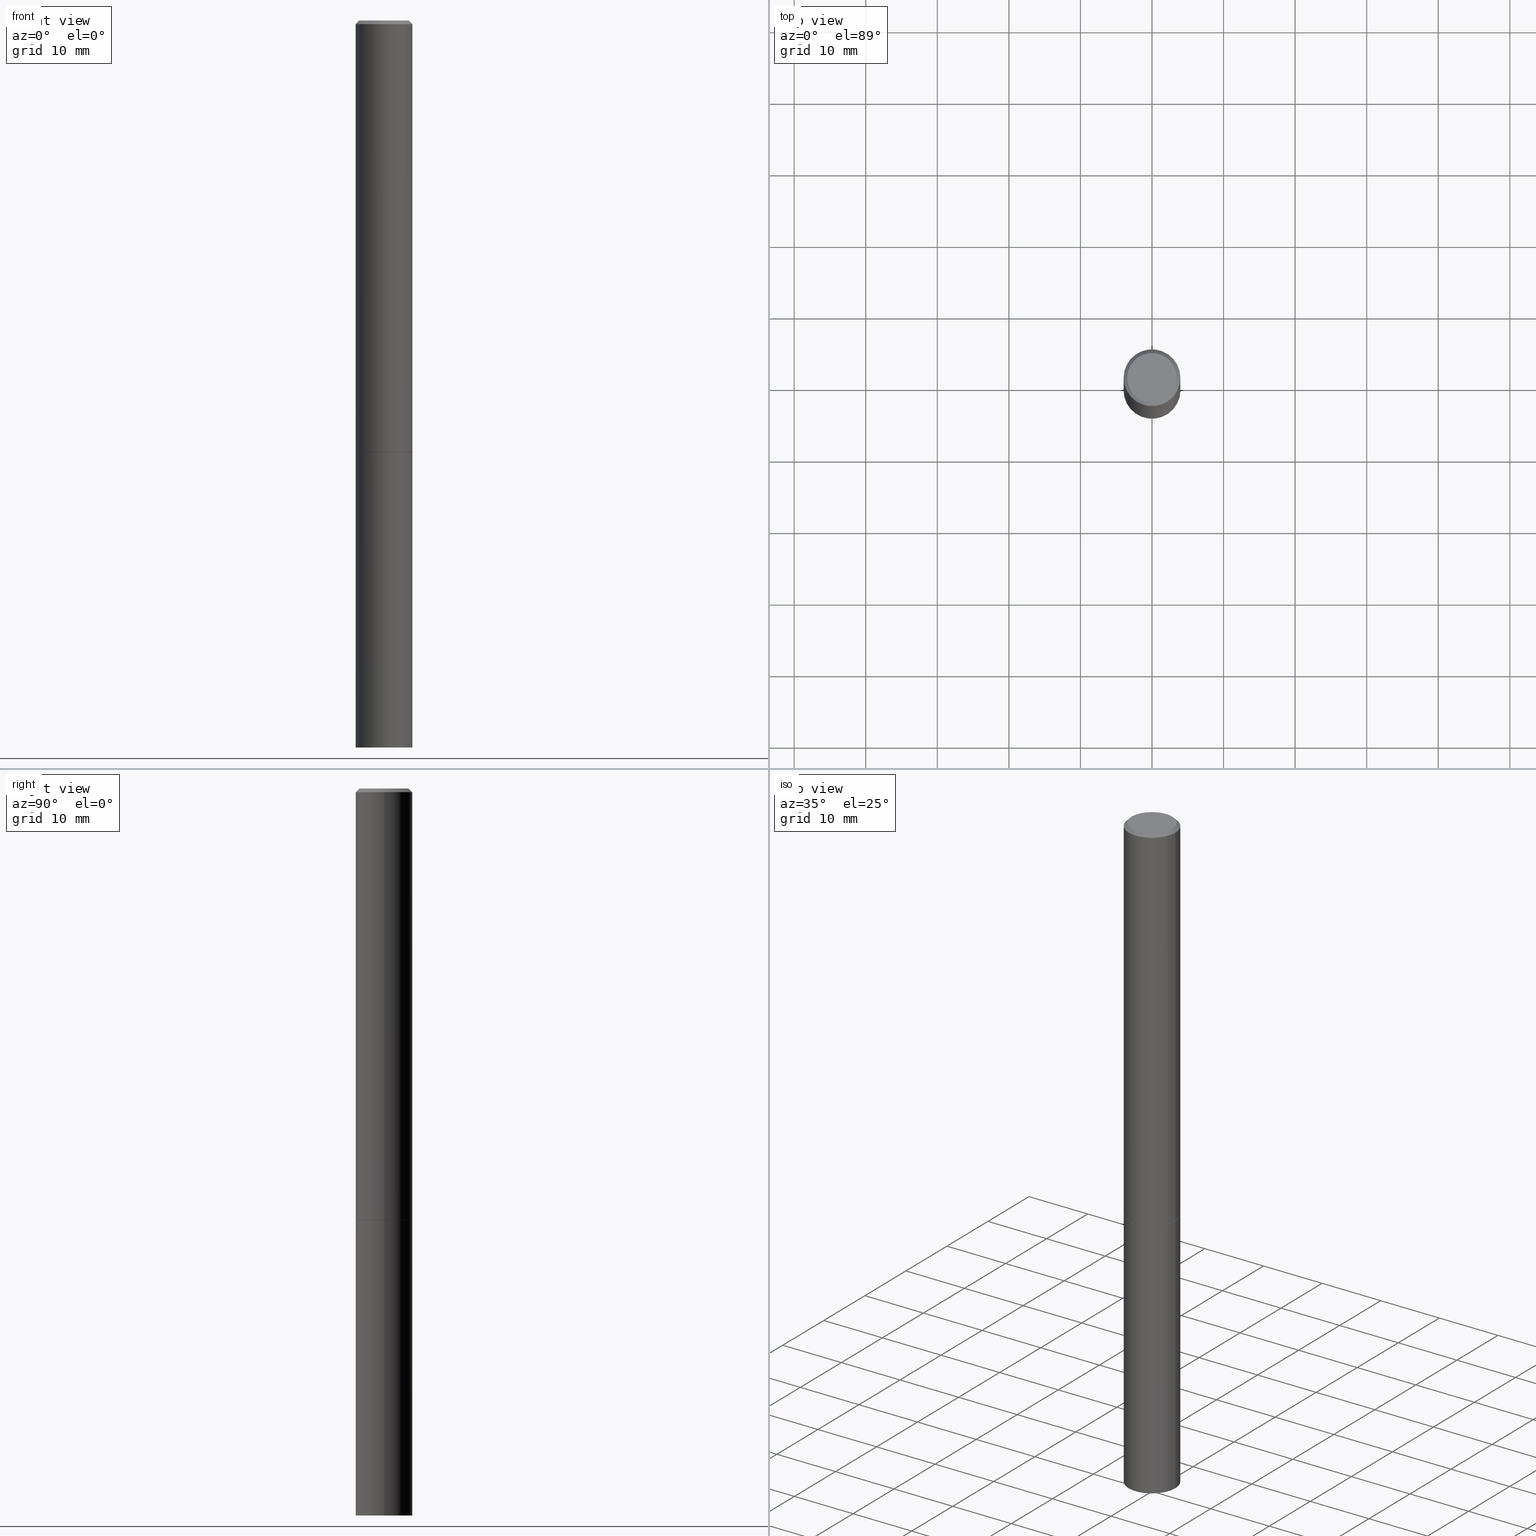
[diagram: canonical four-view strip — front | top / right | iso, engineering-drawing reading convention]
A machine part, canonical four-view strip (front | top / right | iso — engineering-drawing reading convention). The complete STEP part file that produces these views, byte-faithful:
ISO-10303-21;
HEADER;
FILE_DESCRIPTION (( 'STEP AP203' ),
    '1' );
FILE_NAME ('31961.STEP',
    '2024-02-27T14:27:03',
    ( '' ),
    ( '' ),
    'SwSTEP 2.0',
    'SolidWorks 2023',
    '' );
FILE_SCHEMA (( 'CONFIG_CONTROL_DESIGN' ));
ENDSEC;

DATA;
#1 = CARTESIAN_POINT ( 'NONE',  ( -0.1562499999999997224, 1.021258291611614298E-15, -0.02000000000000003511 ) ) ;
#2 = ORIENTED_EDGE ( 'NONE', *, *, #322, .T. ) ;
#3 = DATE_AND_TIME ( #362, #293 ) ;
#4 = CARTESIAN_POINT ( 'NONE',  ( -0.1562499999999998612, 1.110223024625155554E-15, -7.685836078523284153E-30 ) ) ;
#5 = CARTESIAN_POINT ( 'NONE',  ( 0.000000000000000000, 0.000000000000000000, 0.000000000000000000 ) ) ;
#6 = DIRECTION ( 'NONE',  ( 1.000000000000000000, -6.982962677686268288E-15, 0.000000000000000000 ) ) ;
#7 = CC_DESIGN_PERSON_AND_ORGANIZATION_ASSIGNMENT ( #116, #317, ( #271 ) ) ;
#8 = CIRCLE ( 'NONE', #156, 0.1562499999999997224 ) ;
#9 = DIRECTION ( 'NONE',  ( 1.000000000000000000, -6.982962677686262766E-15, 0.000000000000000000 ) ) ;
#10 = CARTESIAN_POINT ( 'NONE',  ( 5.807988414689699417E-29, -8.292268179752470118E-15, -2.375000000000000000 ) ) ;
#11 = ADVANCED_FACE ( 'NONE', ( #86 ), #13, .T. ) ;
#12 =( CONVERSION_BASED_UNIT ( 'INCH', #90 ) LENGTH_UNIT ( ) NAMED_UNIT ( #73 ) );
#13 = CONICAL_SURFACE ( 'NONE', #306, 0.1552499999999999991, 0.7853981633974141952 ) ;
#14 = DIRECTION ( 'NONE',  ( 2.445468806185136597E-29, -3.491481338843145583E-15, -1.000000000000000000 ) ) ;
#15 = DIRECTION ( 'NONE',  ( 0.000000000000000000, 0.000000000000000000, 1.000000000000000000 ) ) ;
#16 = EDGE_CURVE ( 'NONE', #273, #277, #8, .T. ) ;
#17 = PERSON_AND_ORGANIZATION ( #359, #351 ) ;
#18 = CARTESIAN_POINT ( 'NONE',  ( 0.1562499999999998612, -1.091087918388478187E-15, 7.619026212181143371E-30 ) ) ;
#19 = ORIENTED_EDGE ( 'NONE', *, *, #31, .F. ) ;
#20 = COORDINATED_UNIVERSAL_TIME_OFFSET ( 5, 0, .BEHIND. ) ;
#21 = ORIENTED_EDGE ( 'NONE', *, *, #356, .F. ) ;
#22 = CONICAL_SURFACE ( 'NONE', #211, 0.1552499999999999991, 0.7853981633974141952 ) ;
#23 = ORIENTED_EDGE ( 'NONE', *, *, #109, .F. ) ;
#24 = MANIFOLD_SOLID_BREP ( 'Body-Move/Copy2[2]', #178 ) ;
#25 = EDGE_CURVE ( 'NONE', #281, #214, #39, .T. ) ;
#26 = FACE_OUTER_BOUND ( 'NONE', #75, .T. ) ;
#27 = LINE ( 'NONE', #1, #163 ) ;
#28 = ORIENTED_EDGE ( 'NONE', *, *, #238, .T. ) ;
#29 = DIRECTION ( 'NONE',  ( -2.445468806185136597E-29, 3.491481338843145583E-15, 1.000000000000000000 ) ) ;
#30 = DIRECTION ( 'NONE',  ( 1.000000000000000000, -6.982962677686267499E-15, 0.000000000000000000 ) ) ;
#31 = EDGE_CURVE ( 'NONE', #180, #189, #232, .T. ) ;
#32 = CARTESIAN_POINT ( 'NONE',  ( 0.1562500000000000000, -1.091087918388479174E-15, 7.619026212181150377E-30 ) ) ;
#33 = ORIENTED_EDGE ( 'NONE', *, *, #61, .F. ) ;
#34 = CARTESIAN_POINT ( 'NONE',  ( 0.1562500000000000000, -9.379864616802105495E-15, -2.373999999999999666 ) ) ;
#35 = EDGE_LOOP ( 'NONE', ( #23, #33 ) ) ;
#36 = AXIS2_PLACEMENT_3D ( 'NONE', #203, #40, #263 ) ;
#37 = ORIENTED_EDGE ( 'NONE', *, *, #322, .F. ) ;
#38 = CARTESIAN_POINT ( 'NONE',  ( 0.000000000000000000, 0.000000000000000000, 0.000000000000000000 ) ) ;
#39 = CIRCLE ( 'NONE', #135, 0.1362499999999997324 ) ;
#40 = DIRECTION ( 'NONE',  ( 2.438088387897960049E-29, -3.491481338843145188E-15, -1.000000000000000000 ) ) ;
#41 = DIRECTION ( 'NONE',  ( -2.445468806185136597E-29, 3.491481338843145583E-15, 1.000000000000000000 ) ) ;
#42 = CALENDAR_DATE ( 2024, 27, 2 ) ;
#43 = CONICAL_SURFACE ( 'NONE', #237, 0.1562499999999997224, 0.7853981633974472798 ) ;
#44 = PERSON_AND_ORGANIZATION ( #359, #351 ) ;
#45 = ORIENTED_EDGE ( 'NONE', *, *, #122, .T. ) ;
#46 = APPROVAL ( #241, 'UNSPECIFIED' ) ;
#47 = ORIENTED_EDGE ( 'NONE', *, *, #335, .F. ) ;
#48 = EDGE_LOOP ( 'NONE', ( #108, #102, #37, #242 ) ) ;
#49 = APPLICATION_CONTEXT ( 'configuration controlled 3d designs of mechanical parts and assemblies' ) ;
#50 = DIRECTION ( 'NONE',  ( -2.445468806185136597E-29, 3.491481338843145583E-15, 1.000000000000000000 ) ) ;
#51 = LINE ( 'NONE', #158, #249 ) ;
#52 = DIRECTION ( 'NONE',  ( -2.445468806185136877E-29, 3.491481338843145188E-15, 1.000000000000000000 ) ) ;
#53 = AXIS2_PLACEMENT_3D ( 'NONE', #340, #58, #290 ) ;
#54 = DIRECTION ( 'NONE',  ( -2.445468806185136597E-29, 3.491481338843145583E-15, 1.000000000000000000 ) ) ;
#55 = CIRCLE ( 'NONE', #301, 0.1362499999999997324 ) ;
#56 = EDGE_CURVE ( 'NONE', #105, #273, #309, .T. ) ;
#57 = LINE ( 'NONE', #32, #298 ) ;
#58 = DIRECTION ( 'NONE',  ( -2.445468806185136597E-29, 3.491481338843145583E-15, 1.000000000000000000 ) ) ;
#59 = EDGE_LOOP ( 'NONE', ( #2, #160 ) ) ;
#60 = DIRECTION ( 'NONE',  ( 1.000000000000000000, -6.982962677686266711E-15, 4.876176775795936353E-29 ) ) ;
#61 = EDGE_CURVE ( 'NONE', #62, #245, #119, .T. ) ;
#62 = VERTEX_POINT ( 'NONE', #215 ) ;
#63 = AXIS2_PLACEMENT_3D ( 'NONE', #175, #347, #60 ) ;
#64 = CYLINDRICAL_SURFACE ( 'NONE', #63, 0.1562500000000000000 ) ;
#65 = CARTESIAN_POINT ( 'NONE',  ( 0.000000000000000000, 0.000000000000000000, 0.000000000000000000 ) ) ;
#66 = CIRCLE ( 'NONE', #101, 0.1562500000000000000 ) ;
#67 = CARTESIAN_POINT ( 'NONE',  ( -0.1562500000000000000, -1.001887374293736968E-14, -2.375000000000000000 ) ) ;
#68 = PERSON_AND_ORGANIZATION_ROLE ( 'creator' ) ;
#69 = ADVANCED_FACE ( 'NONE', ( #270 ), #239, .F. ) ;
#70 = PRODUCT ( '31961', '31961', '', ( #305 ) ) ;
#71 = APPROVAL_STATUS ( 'not_yet_approved' ) ;
#72 = ORIENTED_EDGE ( 'NONE', *, *, #181, .T. ) ;
#73 = DIMENSIONAL_EXPONENTS ( 1.000000000000000000, 0.000000000000000000, 0.000000000000000000, 0.000000000000000000, 0.000000000000000000, 0.000000000000000000, 0.000000000000000000 ) ;
#74 = APPLICATION_PROTOCOL_DEFINITION ( 'international standard', 'config_control_design', 1994, #49 ) ;
#75 = EDGE_LOOP ( 'NONE', ( #227, #244, #100, #289 ) ) ;
#76 = EDGE_CURVE ( 'NONE', #197, #277, #132, .T. ) ;
#77 = APPROVAL_PERSON_ORGANIZATION ( #44, #226, #274 ) ;
#78 = APPROVAL_ROLE ( '' ) ;
#79 = DIRECTION ( 'NONE',  ( 1.000000000000000000, -6.982962677686268288E-15, 0.000000000000000000 ) ) ;
#80 = COORDINATED_UNIVERSAL_TIME_OFFSET ( 5, 0, .BEHIND. ) ;
#81 = CARTESIAN_POINT ( 'NONE',  ( 9.514286648347519855E-16, 0.1362499999999997324, -4.757143324173776691E-16 ) ) ;
#82 = DIRECTION ( 'NONE',  ( -2.445468806185136597E-29, 3.491481338843145583E-15, 1.000000000000000000 ) ) ;
#83 = ADVANCED_FACE ( 'NONE', ( #287 ), #22, .T. ) ;
#84 = ORIENTED_EDGE ( 'NONE', *, *, #246, .F. ) ;
#85 = DIRECTION ( 'NONE',  ( 2.445468806185136597E-29, -3.491481338843145583E-15, -1.000000000000000000 ) ) ;
#86 = FACE_OUTER_BOUND ( 'NONE', #240, .T. ) ;
#87 = PERSON_AND_ORGANIZATION ( #359, #351 ) ;
#88 = CARTESIAN_POINT ( 'NONE',  ( 1.091087918388537155E-15, 0.1562499999999917011, -2.375000000000000444 ) ) ;
#89 = CYLINDRICAL_SURFACE ( 'NONE', #219, 0.1562500000000000000 ) ;
#90 = LENGTH_MEASURE_WITH_UNIT ( LENGTH_MEASURE( 0.02539999999999999897 ), #95 );
#91 = CIRCLE ( 'NONE', #152, 0.1562500000000000000 ) ;
#92 = APPROVAL ( #224, 'UNSPECIFIED' ) ;
#93 = APPLICATION_PROTOCOL_DEFINITION ( 'international standard', 'config_control_design', 1994, #98 ) ;
#94 = AXIS2_PLACEMENT_3D ( 'NONE', #107, #29, #113 ) ;
#95 =( LENGTH_UNIT ( ) NAMED_UNIT ( * ) SI_UNIT ( $, .METRE. ) );
#96 = ADVANCED_FACE ( 'NONE', ( #26 ), #169, .T. ) ;
#97 = APPROVAL_ROLE ( '' ) ;
#98 = APPLICATION_CONTEXT ( 'configuration controlled 3d designs of mechanical parts and assemblies' ) ;
#99 = DIRECTION ( 'NONE',  ( -2.438088387897960049E-29, 3.491481338843145188E-15, 1.000000000000000000 ) ) ;
#100 = ORIENTED_EDGE ( 'NONE', *, *, #16, .F. ) ;
#101 = AXIS2_PLACEMENT_3D ( 'NONE', #229, #323, #140 ) ;
#102 = ORIENTED_EDGE ( 'NONE', *, *, #291, .T. ) ;
#103 = DIRECTION ( 'NONE',  ( 1.000000000000000000, -6.982962677686262766E-15, 0.000000000000000000 ) ) ;
#104 = PERSON_AND_ORGANIZATION_ROLE ( 'classification_officer' ) ;
#105 = VERTEX_POINT ( 'NONE', #34 ) ;
#106 = AXIS2_PLACEMENT_3D ( 'NONE', #81, #316, #164 ) ;
#107 = CARTESIAN_POINT ( 'NONE',  ( 4.890937612370281041E-31, -6.982962677686302702E-17, -0.02000000000000003511 ) ) ;
#108 = ORIENTED_EDGE ( 'NONE', *, *, #109, .T. ) ;
#109 = EDGE_CURVE ( 'NONE', #245, #62, #66, .T. ) ;
#110 = DIRECTION ( 'NONE',  ( -0.7071067811865467956, 2.468850131082249172E-15, -0.7071067811865482389 ) ) ;
#111 = CARTESIAN_POINT ( 'NONE',  ( 5.807988414689699417E-29, -8.292268179752470118E-15, -2.375000000000000000 ) ) ;
#112 = DIRECTION ( 'NONE',  ( -2.445468806185136597E-29, 3.491481338843145583E-15, 1.000000000000000000 ) ) ;
#113 = DIRECTION ( 'NONE',  ( 1.000000000000000000, -6.982962677686267499E-15, 0.000000000000000000 ) ) ;
#114 = AXIS2_PLACEMENT_3D ( 'NONE', #10, #147, #123 ) ;
#115 = LINE ( 'NONE', #320, #201 ) ;
#116 = PERSON_AND_ORGANIZATION ( #359, #351 ) ;
#117 = DIRECTION ( 'NONE',  ( -0.7071067811865232589, 7.493145998870265808E-15, 0.7071067811865715536 ) ) ;
#118 = FACE_OUTER_BOUND ( 'NONE', #360, .T. ) ;
#119 = CIRCLE ( 'NONE', #243, 0.1562500000000000000 ) ;
#120 = APPROVAL_PERSON_ORGANIZATION ( #303, #46, #97 ) ;
#121 = CARTESIAN_POINT ( 'NONE',  ( -0.1562500000000000000, 1.110223024625156540E-15, -7.685836078523291160E-30 ) ) ;
#122 = EDGE_CURVE ( 'NONE', #189, #180, #364, .T. ) ;
#123 = DIRECTION ( 'NONE',  ( 1.000000000000000000, -6.982962677686262766E-15, 0.000000000000000000 ) ) ;
#124 = CARTESIAN_POINT ( 'NONE',  ( 0.1562499999999997224, -1.141782438928662935E-15, -0.02000000000000003511 ) ) ;
#125 = ADVANCED_FACE ( 'NONE', ( #260 ), #89, .T. ) ;
#126 = PERSON_AND_ORGANIZATION_ROLE ( 'creator' ) ;
#127 = ORIENTED_EDGE ( 'NONE', *, *, #231, .F. ) ;
#128 = PERSON_AND_ORGANIZATION_ROLE ( 'design_owner' ) ;
#129 = ORIENTED_EDGE ( 'NONE', *, *, #25, .F. ) ;
#130 = LOCAL_TIME ( 9, 27, 3.000000000000000000, #308 ) ;
#131 = ORIENTED_EDGE ( 'NONE', *, *, #61, .T. ) ;
#132 = LINE ( 'NONE', #4, #183 ) ;
#133 = ORIENTED_EDGE ( 'NONE', *, *, #291, .F. ) ;
#134 = UNCERTAINTY_MEASURE_WITH_UNIT (LENGTH_MEASURE( 1.000000000000000082E-05 ), #12, 'distance_accuracy_value', 'NONE');
#135 = AXIS2_PLACEMENT_3D ( 'NONE', #5, #112, #186 ) ;
#136 = VECTOR ( 'NONE', #202, 39.37007874015748143 ) ;
#137 = CARTESIAN_POINT ( 'NONE',  ( 0.1552499999999999991, -9.376373135463264066E-15, -2.375000000000000000 ) ) ;
#138 = DIRECTION ( 'NONE',  ( -2.445468806185136877E-29, 3.491481338843145188E-15, 1.000000000000000000 ) ) ;
#139 = PLANE ( 'NONE',  #206 ) ;
#140 = DIRECTION ( 'NONE',  ( 1.000000000000000000, -6.982962677686262766E-15, 0.000000000000000000 ) ) ;
#141 = EDGE_CURVE ( 'NONE', #324, #358, #205, .T. ) ;
#142 = DIRECTION ( 'NONE',  ( 1.000000000000000000, -6.982962677686268288E-15, 0.000000000000000000 ) ) ;
#143 = LINE ( 'NONE', #121, #136 ) ;
#144 = CARTESIAN_POINT ( 'NONE',  ( -0.1562499999999997224, 1.021258291611614298E-15, -0.02000000000000003511 ) ) ;
#145 = CIRCLE ( 'NONE', #94, 0.1562499999999997224 ) ;
#146 = CIRCLE ( 'NONE', #114, 0.1562500000000000000 ) ;
#147 = DIRECTION ( 'NONE',  ( -2.445468806185136597E-29, 3.491481338843145583E-15, 1.000000000000000000 ) ) ;
#148 = PRODUCT_DEFINITION_SHAPE ( 'NONE', 'NONE',  #200 ) ;
#149 = LINE ( 'NONE', #173, #266 ) ;
#150 = DATE_AND_TIME ( #42, #174 ) ;
#151 = VECTOR ( 'NONE', #312, 39.37007874015748143 ) ;
#152 = AXIS2_PLACEMENT_3D ( 'NONE', #225, #166, #9 ) ;
#153 = PERSON_AND_ORGANIZATION ( #359, #351 ) ;
#154 = CC_DESIGN_PERSON_AND_ORGANIZATION_ASSIGNMENT ( #168, #104, ( #228 ) ) ;
#155 = ORIENTED_EDGE ( 'NONE', *, *, #246, .T. ) ;
#156 = AXIS2_PLACEMENT_3D ( 'NONE', #165, #261, #30 ) ;
#157 = SHAPE_DEFINITION_REPRESENTATION ( #148, #299 ) ;
#158 = CARTESIAN_POINT ( 'NONE',  ( 0.1562499999999997224, -1.141782438928662935E-15, -0.02000000000000003511 ) ) ;
#159 = CC_DESIGN_PERSON_AND_ORGANIZATION_ASSIGNMENT ( #333, #128, ( #70 ) ) ;
#160 = ORIENTED_EDGE ( 'NONE', *, *, #141, .T. ) ;
#161 = DIRECTION ( 'NONE',  ( -2.445468806185136597E-29, 3.491481338843145583E-15, 1.000000000000000000 ) ) ;
#162 = AXIS2_PLACEMENT_3D ( 'NONE', #218, #355, #79 ) ;
#163 = VECTOR ( 'NONE', #110, 39.37007874015748143 ) ;
#164 = DIRECTION ( 'NONE',  ( -1.000000000000000000, 6.982962677686265922E-15, -4.876176775795935793E-29 ) ) ;
#165 = CARTESIAN_POINT ( 'NONE',  ( 4.890937612370281041E-31, -6.982962677686302702E-17, -0.02000000000000003511 ) ) ;
#166 = DIRECTION ( 'NONE',  ( -2.445468806185136597E-29, 3.491481338843145583E-15, 1.000000000000000000 ) ) ;
#167 = EDGE_CURVE ( 'NONE', #277, #273, #145, .T. ) ;
#168 = PERSON_AND_ORGANIZATION ( #359, #351 ) ;
#169 = CYLINDRICAL_SURFACE ( 'NONE', #53, 0.1562499999999998612 ) ;
#170 = ORIENTED_EDGE ( 'NONE', *, *, #231, .T. ) ;
#171 = CARTESIAN_POINT ( 'NONE',  ( 5.805542945883513814E-29, -8.288776698413627111E-15, -2.373999999999999666 ) ) ;
#172 = DIRECTION ( 'NONE',  ( -1.000000000000000000, 6.982962677686265922E-15, -4.876176775795935793E-29 ) ) ;
#173 = CARTESIAN_POINT ( 'NONE',  ( -0.1552499999999999991, -7.189150582484915374E-15, -2.375000000000000000 ) ) ;
#174 = LOCAL_TIME ( 9, 27, 3.000000000000000000, #20 ) ;
#175 = CARTESIAN_POINT ( 'NONE',  ( 0.000000000000000000, 0.000000000000000000, 0.000000000000000000 ) ) ;
#176 = CALENDAR_DATE ( 2024, 27, 2 ) ;
#177 = ORIENTED_EDGE ( 'NONE', *, *, #167, .F. ) ;
#178 = CLOSED_SHELL ( 'NONE', ( #11, #96, #262, #304, #339, #83, #69, #185 ) ) ;
#179 = APPROVAL_DATE_TIME ( #354, #46 ) ;
#180 = VERTEX_POINT ( 'NONE', #190 ) ;
#181 = EDGE_CURVE ( 'NONE', #245, #358, #57, .T. ) ;
#182 = ORIENTED_EDGE ( 'NONE', *, *, #25, .T. ) ;
#183 = VECTOR ( 'NONE', #138, 39.37007874015748143 ) ;
#184 =( GEOMETRIC_REPRESENTATION_CONTEXT ( 3 ) GLOBAL_UNCERTAINTY_ASSIGNED_CONTEXT ( ( #134 ) ) GLOBAL_UNIT_ASSIGNED_CONTEXT ( ( #12, #267, #350 ) ) REPRESENTATION_CONTEXT ( 'NONE', 'WORKASPACE' ) );
#185 = ADVANCED_FACE ( 'NONE', ( #255 ), #196, .F. ) ;
#186 = DIRECTION ( 'NONE',  ( 1.000000000000000000, -6.982962677686266711E-15, 4.876176775795936353E-29 ) ) ;
#187 = ORIENTED_EDGE ( 'NONE', *, *, #56, .T. ) ;
#188 = CARTESIAN_POINT ( 'NONE',  ( 0.1362499999999997324, -1.038262645562516152E-15, 6.957025900226682464E-30 ) ) ;
#189 = VERTEX_POINT ( 'NONE', #137 ) ;
#190 = CARTESIAN_POINT ( 'NONE',  ( -0.1552499999999999991, -7.183852128136692972E-15, -2.375000000000000000 ) ) ;
#191 = CC_DESIGN_APPROVAL ( #92, ( #228 ) ) ;
#192 = APPROVAL_DATE_TIME ( #3, #92 ) ;
#193 = DIRECTION ( 'NONE',  ( -1.000000000000000000, 6.982962677686267499E-15, 0.000000000000000000 ) ) ;
#194 = PRODUCT_RELATED_PRODUCT_CATEGORY ( 'detail', '', ( #70 ) ) ;
#195 = DIRECTION ( 'NONE',  ( 2.438088387897960049E-29, -3.491481338843145188E-15, -1.000000000000000000 ) ) ;
#196 = PLANE ( 'NONE',  #106 ) ;
#197 = VERTEX_POINT ( 'NONE', #345 ) ;
#198 = AXIS2_PLACEMENT_3D ( 'NONE', #353, #99, #221 ) ;
#199 = PLANE ( 'NONE',  #36 ) ;
#200 = PRODUCT_DEFINITION ( 'UNKNOWN', '', #271, #342 ) ;
#201 = VECTOR ( 'NONE', #346, 39.37007874015748854 ) ;
#202 = DIRECTION ( 'NONE',  ( -2.445468806185136877E-29, 3.491481338843145188E-15, 1.000000000000000000 ) ) ;
#203 = CARTESIAN_POINT ( 'NONE',  ( 1.091087918388576795E-15, 0.1562499999999860389, -4.000000000000000888 ) ) ;
#204 = CYLINDRICAL_SURFACE ( 'NONE', #366, 0.1562499999999998612 ) ;
#205 = CIRCLE ( 'NONE', #259, 0.1562500000000000000 ) ;
#206 = AXIS2_PLACEMENT_3D ( 'NONE', #88, #195, #172 ) ;
#207 = DIRECTION ( 'NONE',  ( 1.000000000000000000, -6.982962677686262766E-15, 0.000000000000000000 ) ) ;
#208 = ORIENTED_EDGE ( 'NONE', *, *, #361, .F. ) ;
#209 = DATE_AND_TIME ( #176, #130 ) ;
#210 = ORIENTED_EDGE ( 'NONE', *, *, #356, .T. ) ;
#211 = AXIS2_PLACEMENT_3D ( 'NONE', #251, #161, #6 ) ;
#212 = CC_DESIGN_APPROVAL ( #226, ( #271 ) ) ;
#213 = CARTESIAN_POINT ( 'NONE',  ( 9.781875224740546387E-29, -1.396592535537258233E-14, -4.000000000000000000 ) ) ;
#214 = VERTEX_POINT ( 'NONE', #188 ) ;
#215 = CARTESIAN_POINT ( 'NONE',  ( -0.1562500000000000000, -1.001887374293736968E-14, -4.000000000000000000 ) ) ;
#216 = EDGE_CURVE ( 'NONE', #214, #273, #51, .T. ) ;
#217 = DATE_AND_TIME ( #257, #310 ) ;
#218 = CARTESIAN_POINT ( 'NONE',  ( 5.807988414689699417E-29, -8.292268179752470118E-15, -2.375000000000000000 ) ) ;
#219 = AXIS2_PLACEMENT_3D ( 'NONE', #247, #82, #341 ) ;
#220 = AXIS2_PLACEMENT_3D ( 'NONE', #343, #85, #193 ) ;
#221 = DIRECTION ( 'NONE',  ( 1.000000000000000000, -6.982962677686265922E-15, 4.876176775795935793E-29 ) ) ;
#222 = ORIENTED_EDGE ( 'NONE', *, *, #16, .T. ) ;
#223 = FACE_OUTER_BOUND ( 'NONE', #332, .T. ) ;
#224 = APPROVAL_STATUS ( 'not_yet_approved' ) ;
#225 = CARTESIAN_POINT ( 'NONE',  ( 5.805542945883513814E-29, -8.288776698413627111E-15, -2.373999999999999666 ) ) ;
#226 = APPROVAL ( #71, 'UNSPECIFIED' ) ;
#227 = ORIENTED_EDGE ( 'NONE', *, *, #335, .T. ) ;
#228 = SECURITY_CLASSIFICATION ( '', '', #311 ) ;
#229 = CARTESIAN_POINT ( 'NONE',  ( 9.781875224740546387E-29, -1.396592535537258233E-14, -4.000000000000000000 ) ) ;
#230 = CARTESIAN_POINT ( 'NONE',  ( 5.807988414689699417E-29, -8.292268179752470118E-15, -2.375000000000000000 ) ) ;
#231 = EDGE_CURVE ( 'NONE', #197, #105, #91, .T. ) ;
#232 = CIRCLE ( 'NONE', #162, 0.1552499999999999991 ) ;
#233 = CARTESIAN_POINT ( 'NONE',  ( 4.890937612370281041E-31, -6.982962677686302702E-17, -0.02000000000000003511 ) ) ;
#234 = CARTESIAN_POINT ( 'NONE',  ( -0.1362499999999997324, 9.863434782231830429E-16, -6.775751096333125871E-30 ) ) ;
#235 = DIRECTION ( 'NONE',  ( 1.000000000000000000, 0.000000000000000000, 0.000000000000000000 ) ) ;
#236 = DIRECTION ( 'NONE',  ( -2.445468806185136597E-29, 3.491481338843145583E-15, 1.000000000000000000 ) ) ;
#237 = AXIS2_PLACEMENT_3D ( 'NONE', #233, #14, #296 ) ;
#238 = EDGE_CURVE ( 'NONE', #189, #105, #115, .T. ) ;
#239 = PLANE ( 'NONE',  #198 ) ;
#240 = EDGE_LOOP ( 'NONE', ( #45, #334, #47, #329 ) ) ;
#241 = APPROVAL_STATUS ( 'not_yet_approved' ) ;
#242 = ORIENTED_EDGE ( 'NONE', *, *, #181, .F. ) ;
#243 = AXIS2_PLACEMENT_3D ( 'NONE', #213, #50, #103 ) ;
#244 = ORIENTED_EDGE ( 'NONE', *, *, #76, .T. ) ;
#245 = VERTEX_POINT ( 'NONE', #284 ) ;
#246 = EDGE_CURVE ( 'NONE', #281, #277, #27, .T. ) ;
#247 = CARTESIAN_POINT ( 'NONE',  ( 0.000000000000000000, 0.000000000000000000, 0.000000000000000000 ) ) ;
#248 = ORIENTED_EDGE ( 'NONE', *, *, #122, .F. ) ;
#249 = VECTOR ( 'NONE', #319, 39.37007874015748143 ) ;
#250 = AXIS2_PLACEMENT_3D ( 'NONE', #65, #15, #235 ) ;
#251 = CARTESIAN_POINT ( 'NONE',  ( 5.807988414689699417E-29, -8.292268179752470118E-15, -2.375000000000000000 ) ) ;
#252 = EDGE_LOOP ( 'NONE', ( #307, #129, #155, #336 ) ) ;
#253 = MANIFOLD_SOLID_BREP ( 'Body-Move/Copy2[1]', #325 ) ;
#254 = COORDINATED_UNIVERSAL_TIME_OFFSET ( 5, 0, .BEHIND. ) ;
#255 = FACE_OUTER_BOUND ( 'NONE', #292, .T. ) ;
#256 = ORIENTED_EDGE ( 'NONE', *, *, #76, .F. ) ;
#257 = CALENDAR_DATE ( 2024, 27, 2 ) ;
#258 = DIRECTION ( 'NONE',  ( 1.000000000000000000, -6.982962677686268288E-15, 0.000000000000000000 ) ) ;
#259 = AXIS2_PLACEMENT_3D ( 'NONE', #111, #314, #363 ) ;
#260 = FACE_OUTER_BOUND ( 'NONE', #344, .T. ) ;
#261 = DIRECTION ( 'NONE',  ( -2.445468806185136597E-29, 3.491481338843145583E-15, 1.000000000000000000 ) ) ;
#262 = ADVANCED_FACE ( 'NONE', ( #223 ), #348, .T. ) ;
#263 = DIRECTION ( 'NONE',  ( -1.000000000000000000, 6.982962677686265922E-15, -4.876176775795935793E-29 ) ) ;
#264 = DIRECTION ( 'NONE',  ( 1.000000000000000000, -6.982962677686266711E-15, 4.876176775795936353E-29 ) ) ;
#265 = FACE_OUTER_BOUND ( 'NONE', #35, .T. ) ;
#266 = VECTOR ( 'NONE', #117, 39.37007874015748854 ) ;
#267 =( NAMED_UNIT ( * ) PLANE_ANGLE_UNIT ( ) SI_UNIT ( $, .RADIAN. ) );
#268 = CC_DESIGN_DATE_AND_TIME_ASSIGNMENT ( #217, #337, ( #228 ) ) ;
#269 = APPROVAL_DATE_TIME ( #150, #226 ) ;
#270 = FACE_OUTER_BOUND ( 'NONE', #365, .T. ) ;
#271 = PRODUCT_DEFINITION_FORMATION_WITH_SPECIFIED_SOURCE ( 'ANY', '', #70, .NOT_KNOWN. ) ;
#272 = ADVANCED_FACE ( 'NONE', ( #288 ), #139, .F. ) ;
#273 = VERTEX_POINT ( 'NONE', #124 ) ;
#274 = APPROVAL_ROLE ( '' ) ;
#275 = EDGE_LOOP ( 'NONE', ( #208, #313, #28, #127 ) ) ;
#276 = AXIS2_PLACEMENT_3D ( 'NONE', #230, #282, #258 ) ;
#277 = VERTEX_POINT ( 'NONE', #144 ) ;
#278 = AXIS2_PLACEMENT_3D ( 'NONE', #171, #41, #207 ) ;
#279 = CC_DESIGN_APPROVAL ( #46, ( #200 ) ) ;
#280 = ADVANCED_FACE ( 'NONE', ( #265 ), #199, .T. ) ;
#281 = VERTEX_POINT ( 'NONE', #234 ) ;
#282 = DIRECTION ( 'NONE',  ( -2.445468806185136597E-29, 3.491481338843145583E-15, 1.000000000000000000 ) ) ;
#283 = ORIENTED_EDGE ( 'NONE', *, *, #141, .F. ) ;
#284 = CARTESIAN_POINT ( 'NONE',  ( 0.1562500000000000000, -1.505701327376106229E-14, -4.000000000000000000 ) ) ;
#285 = CC_DESIGN_PERSON_AND_ORGANIZATION_ASSIGNMENT ( #17, #126, ( #271 ) ) ;
#286 = CIRCLE ( 'NONE', #278, 0.1562500000000000000 ) ;
#287 = FACE_OUTER_BOUND ( 'NONE', #275, .T. ) ;
#288 = FACE_OUTER_BOUND ( 'NONE', #59, .T. ) ;
#289 = ORIENTED_EDGE ( 'NONE', *, *, #56, .F. ) ;
#290 = DIRECTION ( 'NONE',  ( 1.000000000000000000, -6.982962677686266711E-15, 4.876176775795936353E-29 ) ) ;
#291 = EDGE_CURVE ( 'NONE', #62, #324, #143, .T. ) ;
#292 = EDGE_LOOP ( 'NONE', ( #182, #210 ) ) ;
#293 = LOCAL_TIME ( 9, 27, 3.000000000000000000, #80 ) ;
#294 = DIRECTION ( 'NONE',  ( 1.000000000000000000, -6.982962677686266711E-15, 4.876176775795936353E-29 ) ) ;
#295 = CARTESIAN_POINT ( 'NONE',  ( 0.1562500000000000000, -9.383356098140948502E-15, -2.375000000000000000 ) ) ;
#296 = DIRECTION ( 'NONE',  ( -1.000000000000000000, 6.982962677686267499E-15, 0.000000000000000000 ) ) ;
#297 = CC_DESIGN_PERSON_AND_ORGANIZATION_ASSIGNMENT ( #153, #68, ( #200 ) ) ;
#298 = VECTOR ( 'NONE', #52, 39.37007874015748143 ) ;
#299 = ADVANCED_BREP_SHAPE_REPRESENTATION ( '31961', ( #253, #24, #250 ), #184 ) ;
#300 = CARTESIAN_POINT ( 'NONE',  ( 0.000000000000000000, 0.000000000000000000, 0.000000000000000000 ) ) ;
#301 = AXIS2_PLACEMENT_3D ( 'NONE', #300, #352, #264 ) ;
#302 = FACE_OUTER_BOUND ( 'NONE', #48, .T. ) ;
#303 = PERSON_AND_ORGANIZATION ( #359, #351 ) ;
#304 = ADVANCED_FACE ( 'NONE', ( #326 ), #43, .T. ) ;
#305 = MECHANICAL_CONTEXT ( 'NONE', #98, 'mechanical' ) ;
#306 = AXIS2_PLACEMENT_3D ( 'NONE', #318, #54, #142 ) ;
#307 = ORIENTED_EDGE ( 'NONE', *, *, #216, .F. ) ;
#308 = COORDINATED_UNIVERSAL_TIME_OFFSET ( 5, 0, .BEHIND. ) ;
#309 = LINE ( 'NONE', #18, #151 ) ;
#310 = LOCAL_TIME ( 9, 27, 3.000000000000000000, #254 ) ;
#311 = SECURITY_CLASSIFICATION_LEVEL ( 'unclassified' ) ;
#312 = DIRECTION ( 'NONE',  ( -2.445468806185136877E-29, 3.491481338843145188E-15, 1.000000000000000000 ) ) ;
#313 = ORIENTED_EDGE ( 'NONE', *, *, #31, .T. ) ;
#314 = DIRECTION ( 'NONE',  ( -2.445468806185136597E-29, 3.491481338843145583E-15, 1.000000000000000000 ) ) ;
#315 = ADVANCED_FACE ( 'NONE', ( #302 ), #64, .T. ) ;
#316 = DIRECTION ( 'NONE',  ( 2.438088387897960049E-29, -3.491481338843145188E-15, -1.000000000000000000 ) ) ;
#317 = PERSON_AND_ORGANIZATION_ROLE ( 'design_supplier' ) ;
#318 = CARTESIAN_POINT ( 'NONE',  ( 5.807988414689699417E-29, -8.292268179752470118E-15, -2.375000000000000000 ) ) ;
#319 = DIRECTION ( 'NONE',  ( 0.7071067811865467956, -7.319954787623254468E-15, -0.7071067811865482389 ) ) ;
#320 = CARTESIAN_POINT ( 'NONE',  ( 0.1552499999999999991, -9.376373135463264066E-15, -2.375000000000000000 ) ) ;
#321 = ORIENTED_EDGE ( 'NONE', *, *, #216, .T. ) ;
#322 = EDGE_CURVE ( 'NONE', #358, #324, #146, .T. ) ;
#323 = DIRECTION ( 'NONE',  ( -2.445468806185136597E-29, 3.491481338843145583E-15, 1.000000000000000000 ) ) ;
#324 = VERTEX_POINT ( 'NONE', #67 ) ;
#325 = CLOSED_SHELL ( 'NONE', ( #315, #280, #272, #125 ) ) ;
#326 = FACE_OUTER_BOUND ( 'NONE', #252, .T. ) ;
#327 = CALENDAR_DATE ( 2024, 27, 2 ) ;
#328 = COORDINATED_UNIVERSAL_TIME_OFFSET ( 5, 0, .BEHIND. ) ;
#329 = ORIENTED_EDGE ( 'NONE', *, *, #238, .F. ) ;
#330 = DATE_TIME_ROLE ( 'creation_date' ) ;
#331 = LOCAL_TIME ( 9, 27, 3.000000000000000000, #328 ) ;
#332 = EDGE_LOOP ( 'NONE', ( #21, #321, #222, #84 ) ) ;
#333 = PERSON_AND_ORGANIZATION ( #359, #351 ) ;
#334 = ORIENTED_EDGE ( 'NONE', *, *, #361, .T. ) ;
#335 = EDGE_CURVE ( 'NONE', #105, #197, #286, .T. ) ;
#336 = ORIENTED_EDGE ( 'NONE', *, *, #167, .T. ) ;
#337 = DATE_TIME_ROLE ( 'classification_date' ) ;
#338 = CC_DESIGN_SECURITY_CLASSIFICATION ( #228, ( #271 ) ) ;
#339 = ADVANCED_FACE ( 'NONE', ( #118 ), #204, .T. ) ;
#340 = CARTESIAN_POINT ( 'NONE',  ( 0.000000000000000000, 0.000000000000000000, 0.000000000000000000 ) ) ;
#341 = DIRECTION ( 'NONE',  ( 1.000000000000000000, -6.982962677686266711E-15, 4.876176775795936353E-29 ) ) ;
#342 = DESIGN_CONTEXT ( 'detailed design', #49, 'design' ) ;
#343 = CARTESIAN_POINT ( 'NONE',  ( 4.890937612370281041E-31, -6.982962677686302702E-17, -0.02000000000000003511 ) ) ;
#344 = EDGE_LOOP ( 'NONE', ( #133, #131, #72, #283 ) ) ;
#345 = CARTESIAN_POINT ( 'NONE',  ( -0.1562500000000000000, -3.069080137970085114E-15, -2.373999999999999666 ) ) ;
#346 = DIRECTION ( 'NONE',  ( 0.7071067811865232589, -2.468850131082003836E-15, 0.7071067811865715536 ) ) ;
#347 = DIRECTION ( 'NONE',  ( -2.445468806185136597E-29, 3.491481338843145583E-15, 1.000000000000000000 ) ) ;
#348 = CONICAL_SURFACE ( 'NONE', #220, 0.1562499999999997224, 0.7853981633974472798 ) ;
#349 = CC_DESIGN_DATE_AND_TIME_ASSIGNMENT ( #209, #330, ( #200 ) ) ;
#350 =( NAMED_UNIT ( * ) SI_UNIT ( $, .STERADIAN. ) SOLID_ANGLE_UNIT ( ) );
#351 = ORGANIZATION ( 'UNSPECIFIED', 'UNSPECIFIED', '' ) ;
#352 = DIRECTION ( 'NONE',  ( -2.445468806185136597E-29, 3.491481338843145583E-15, 1.000000000000000000 ) ) ;
#353 = CARTESIAN_POINT ( 'NONE',  ( 5.807988414689699417E-29, -8.292268179752470118E-15, -2.375000000000000000 ) ) ;
#354 = DATE_AND_TIME ( #327, #331 ) ;
#355 = DIRECTION ( 'NONE',  ( -2.445468806185136597E-29, 3.491481338843145583E-15, 1.000000000000000000 ) ) ;
#356 = EDGE_CURVE ( 'NONE', #214, #281, #55, .T. ) ;
#357 = APPROVAL_PERSON_ORGANIZATION ( #87, #92, #78 ) ;
#358 = VERTEX_POINT ( 'NONE', #295 ) ;
#359 = PERSON ( 'UNSPECIFIED', 'UNSPECIFIED', 'UNSPECIFIED', ('UNSPECIFIED'), ('UNSPECIFIED'), ('UNSPECIFIED') ) ;
#360 = EDGE_LOOP ( 'NONE', ( #256, #170, #187, #177 ) ) ;
#361 = EDGE_CURVE ( 'NONE', #180, #197, #149, .T. ) ;
#362 = CALENDAR_DATE ( 2024, 27, 2 ) ;
#363 = DIRECTION ( 'NONE',  ( 1.000000000000000000, -6.982962677686262766E-15, 0.000000000000000000 ) ) ;
#364 = CIRCLE ( 'NONE', #276, 0.1552499999999999991 ) ;
#365 = EDGE_LOOP ( 'NONE', ( #248, #19 ) ) ;
#366 = AXIS2_PLACEMENT_3D ( 'NONE', #38, #236, #294 ) ;
ENDSEC;
END-ISO-10303-21;
